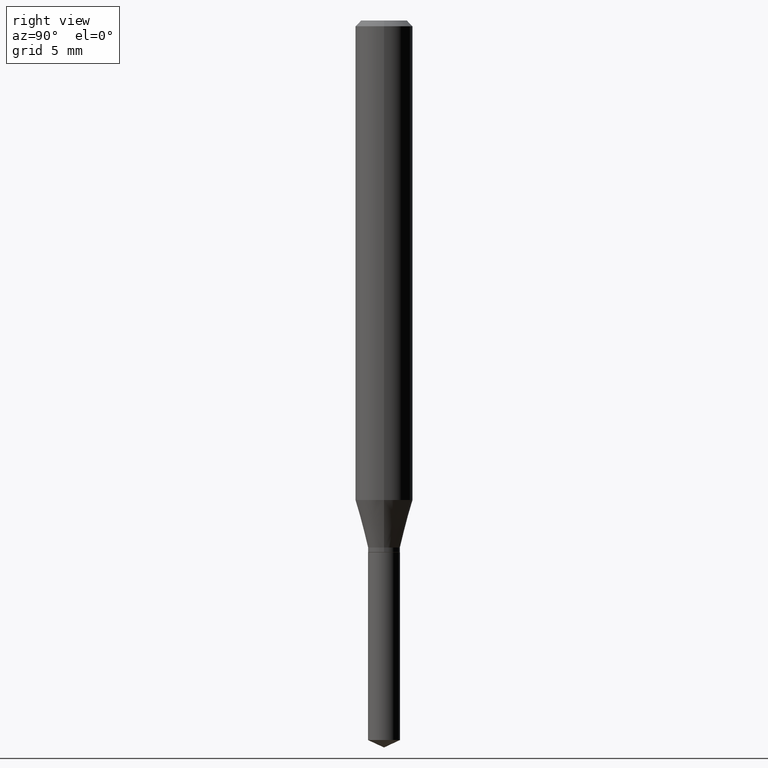
[diagram: clean part render]
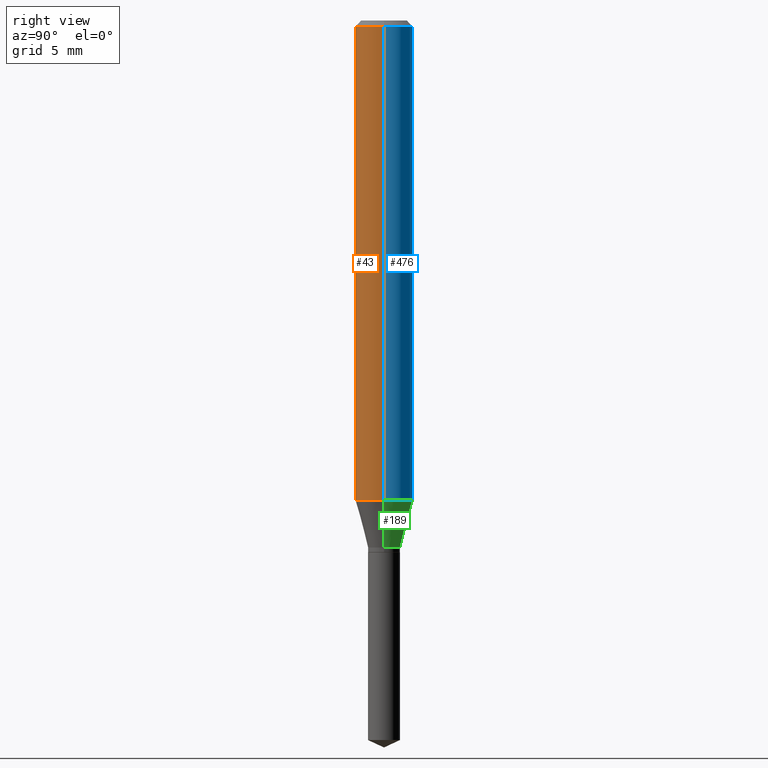
[diagram: same view with three faces highlighted in distinct colors, each labeled with its STEP entity id]
A machine part, right view with three faces highlighted in distinct colors.
Their STEP definitions:

[orange] entity #43 — the highlighted cylindrical surface (edge-blend (fillet) strip) has radius 1.4999 mm, axis along (-0, 0, 1).
#8 = DIRECTION ( 'NONE',  ( -2.445468806185136877E-29, 3.491481338843145188E-15, 1.000000000000000000 ) ) ;
#18 = CARTESIAN_POINT ( 'NONE',  ( 0.05905000000000011628, -3.857808499570329297E-15, -0.9868202688416950474 ) ) ;
#26 = VERTEX_POINT ( 'NONE', #65 ) ;
#27 = DIRECTION ( 'NONE',  ( -2.445468806185136597E-29, 3.491481338843145583E-15, 1.000000000000000000 ) ) ;
#32 = DIRECTION ( 'NONE',  ( 1.000000000000000000, -6.982962677686266711E-15, 0.000000000000000000 ) ) ;
#43 = ADVANCED_FACE ( 'NONE', ( #359 ), #105, .T. ) ;
#65 = CARTESIAN_POINT ( 'NONE',  ( -0.05904999999999999832, -1.323773988566005771E-15, -0.01181000000000007218 ) ) ;
#73 = LINE ( 'NONE', #220, #377 ) ;
#83 = AXIS2_PLACEMENT_3D ( 'NONE', #187, #369, #111 ) ;
#101 = CARTESIAN_POINT ( 'NONE',  ( 0.05905000000000006077, -4.123439461173744764E-16, 2.879382386107503023E-30 ) ) ;
#103 = CARTESIAN_POINT ( 'NONE',  ( -0.05905000000000011628, -3.025889067986614883E-15, -0.9868202688416950474 ) ) ;
#105 = CYLINDRICAL_SURFACE ( 'NONE', #83, 0.05905000000000006077 ) ;
#111 = DIRECTION ( 'NONE',  ( 1.000000000000000000, -6.982962677686266711E-15, 4.876176775795935793E-29 ) ) ;
#114 = VERTEX_POINT ( 'NONE', #18 ) ;
#118 = VECTOR ( 'NONE', #434, 39.37007874015748143 ) ;
#120 = ORIENTED_EDGE ( 'NONE', *, *, #240, .T. ) ;
#160 = DIRECTION ( 'NONE',  ( 1.000000000000000000, -6.982962677686266711E-15, 0.000000000000000000 ) ) ;
#173 = CIRCLE ( 'NONE', #478, 0.05905000000000011628 ) ;
#187 = CARTESIAN_POINT ( 'NONE',  ( 0.000000000000000000, 0.000000000000000000, 0.000000000000000000 ) ) ;
#198 = ORIENTED_EDGE ( 'NONE', *, *, #436, .T. ) ;
#220 = CARTESIAN_POINT ( 'NONE',  ( -0.05905000000000006077, 4.195754854663395916E-16, -2.904631170795524694E-30 ) ) ;
#235 = DIRECTION ( 'NONE',  ( -2.445468806185136597E-29, 3.491481338843145583E-15, 1.000000000000000000 ) ) ;
#240 = EDGE_CURVE ( 'NONE', #114, #255, #258, .T. ) ;
#255 = VERTEX_POINT ( 'NONE', #290 ) ;
#258 = LINE ( 'NONE', #101, #118 ) ;
#290 = CARTESIAN_POINT ( 'NONE',  ( 0.05904999999999999832, -4.535783407291118600E-16, -0.01181000000000007218 ) ) ;
#308 = VERTEX_POINT ( 'NONE', #103 ) ;
#323 = CARTESIAN_POINT ( 'NONE',  ( 2.413238184763595651E-29, -3.445464553452954771E-15, -0.9868202688416950474 ) ) ;
#325 = EDGE_CURVE ( 'NONE', #308, #26, #73, .T. ) ;
#341 = ORIENTED_EDGE ( 'NONE', *, *, #325, .F. ) ;
#359 = FACE_OUTER_BOUND ( 'NONE', #489, .T. ) ;
#360 = AXIS2_PLACEMENT_3D ( 'NONE', #361, #235, #160 ) ;
#361 = CARTESIAN_POINT ( 'NONE',  ( 2.888098660104664204E-31, -4.123439461173780263E-17, -0.01181000000000007218 ) ) ;
#369 = DIRECTION ( 'NONE',  ( -2.445468806185136597E-29, 3.491481338843145583E-15, 1.000000000000000000 ) ) ;
#377 = VECTOR ( 'NONE', #8, 39.37007874015748143 ) ;
#379 = CIRCLE ( 'NONE', #360, 0.05904999999999999832 ) ;
#403 = ORIENTED_EDGE ( 'NONE', *, *, #459, .F. ) ;
#434 = DIRECTION ( 'NONE',  ( -2.445468806185136877E-29, 3.491481338843145188E-15, 1.000000000000000000 ) ) ;
#436 = EDGE_CURVE ( 'NONE', #308, #114, #173, .T. ) ;
#459 = EDGE_CURVE ( 'NONE', #26, #255, #379, .T. ) ;
#478 = AXIS2_PLACEMENT_3D ( 'NONE', #323, #27, #32 ) ;
#489 = EDGE_LOOP ( 'NONE', ( #341, #198, #120, #403 ) ) ;

[blue] entity #476 — the highlighted cylindrical surface (edge-blend (fillet) strip) has radius 1.4999 mm, axis along (-0, 0, 1).
#1 = CARTESIAN_POINT ( 'NONE',  ( 2.888098660104664204E-31, -4.123439461173780263E-17, -0.01181000000000007218 ) ) ;
#6 = DIRECTION ( 'NONE',  ( 1.000000000000000000, -6.982962677686266711E-15, 0.000000000000000000 ) ) ;
#8 = DIRECTION ( 'NONE',  ( -2.445468806185136877E-29, 3.491481338843145188E-15, 1.000000000000000000 ) ) ;
#18 = CARTESIAN_POINT ( 'NONE',  ( 0.05905000000000011628, -3.857808499570329297E-15, -0.9868202688416950474 ) ) ;
#26 = VERTEX_POINT ( 'NONE', #65 ) ;
#37 = AXIS2_PLACEMENT_3D ( 'NONE', #245, #136, #433 ) ;
#54 = ORIENTED_EDGE ( 'NONE', *, *, #240, .F. ) ;
#65 = CARTESIAN_POINT ( 'NONE',  ( -0.05904999999999999832, -1.323773988566005771E-15, -0.01181000000000007218 ) ) ;
#73 = LINE ( 'NONE', #220, #377 ) ;
#101 = CARTESIAN_POINT ( 'NONE',  ( 0.05905000000000006077, -4.123439461173744764E-16, 2.879382386107503023E-30 ) ) ;
#103 = CARTESIAN_POINT ( 'NONE',  ( -0.05905000000000011628, -3.025889067986614883E-15, -0.9868202688416950474 ) ) ;
#114 = VERTEX_POINT ( 'NONE', #18 ) ;
#118 = VECTOR ( 'NONE', #434, 39.37007874015748143 ) ;
#136 = DIRECTION ( 'NONE',  ( -2.445468806185136597E-29, 3.491481338843145583E-15, 1.000000000000000000 ) ) ;
#147 = ORIENTED_EDGE ( 'NONE', *, *, #346, .F. ) ;
#155 = ORIENTED_EDGE ( 'NONE', *, *, #266, .T. ) ;
#168 = CYLINDRICAL_SURFACE ( 'NONE', #37, 0.05905000000000006077 ) ;
#172 = CIRCLE ( 'NONE', #299, 0.05905000000000011628 ) ;
#177 = DIRECTION ( 'NONE',  ( 1.000000000000000000, -6.982962677686266711E-15, 0.000000000000000000 ) ) ;
#220 = CARTESIAN_POINT ( 'NONE',  ( -0.05905000000000006077, 4.195754854663395916E-16, -2.904631170795524694E-30 ) ) ;
#240 = EDGE_CURVE ( 'NONE', #114, #255, #258, .T. ) ;
#245 = CARTESIAN_POINT ( 'NONE',  ( 0.000000000000000000, 0.000000000000000000, 0.000000000000000000 ) ) ;
#247 = FACE_OUTER_BOUND ( 'NONE', #411, .T. ) ;
#251 = AXIS2_PLACEMENT_3D ( 'NONE', #1, #339, #6 ) ;
#255 = VERTEX_POINT ( 'NONE', #290 ) ;
#258 = LINE ( 'NONE', #101, #118 ) ;
#264 = ORIENTED_EDGE ( 'NONE', *, *, #325, .T. ) ;
#266 = EDGE_CURVE ( 'NONE', #114, #308, #172, .T. ) ;
#290 = CARTESIAN_POINT ( 'NONE',  ( 0.05904999999999999832, -4.535783407291118600E-16, -0.01181000000000007218 ) ) ;
#299 = AXIS2_PLACEMENT_3D ( 'NONE', #483, #408, #177 ) ;
#308 = VERTEX_POINT ( 'NONE', #103 ) ;
#325 = EDGE_CURVE ( 'NONE', #308, #26, #73, .T. ) ;
#331 = CIRCLE ( 'NONE', #251, 0.05904999999999999832 ) ;
#339 = DIRECTION ( 'NONE',  ( -2.445468806185136597E-29, 3.491481338843145583E-15, 1.000000000000000000 ) ) ;
#346 = EDGE_CURVE ( 'NONE', #255, #26, #331, .T. ) ;
#377 = VECTOR ( 'NONE', #8, 39.37007874015748143 ) ;
#408 = DIRECTION ( 'NONE',  ( -2.445468806185136597E-29, 3.491481338843145583E-15, 1.000000000000000000 ) ) ;
#411 = EDGE_LOOP ( 'NONE', ( #155, #264, #147, #54 ) ) ;
#433 = DIRECTION ( 'NONE',  ( 1.000000000000000000, -6.982962677686266711E-15, 4.876176775795935793E-29 ) ) ;
#434 = DIRECTION ( 'NONE',  ( -2.445468806185136877E-29, 3.491481338843145188E-15, 1.000000000000000000 ) ) ;
#476 = ADVANCED_FACE ( 'NONE', ( #247 ), #168, .T. ) ;
#483 = CARTESIAN_POINT ( 'NONE',  ( 2.413238184763595651E-29, -3.445464553452954771E-15, -0.9868202688416950474 ) ) ;

[green] entity #189 — the highlighted conical surface has half-angle 15 deg.
#15 = CARTESIAN_POINT ( 'NONE',  ( 2.652355467188399034E-29, -3.786860660109275425E-15, -1.084600000000000009 ) ) ;
#18 = CARTESIAN_POINT ( 'NONE',  ( 0.05905000000000011628, -3.857808499570329297E-15, -0.9868202688416950474 ) ) ;
#25 = CARTESIAN_POINT ( 'NONE',  ( -0.03284999999999999726, -3.553447371412082977E-15, -1.084600000000000009 ) ) ;
#45 = EDGE_CURVE ( 'NONE', #268, #114, #254, .T. ) ;
#46 = CIRCLE ( 'NONE', #197, 0.03284999999999999726 ) ;
#63 = DIRECTION ( 'NONE',  ( -0.2588190451025211836, 5.211531920934547886E-15, 0.9659258262890679791 ) ) ;
#72 = CARTESIAN_POINT ( 'NONE',  ( 0.03284999999999999726, -4.016250984071269671E-15, -1.084600000000000009 ) ) ;
#88 = ORIENTED_EDGE ( 'NONE', *, *, #382, .T. ) ;
#90 = VECTOR ( 'NONE', #178, 39.37007874015748854 ) ;
#92 = ORIENTED_EDGE ( 'NONE', *, *, #45, .F. ) ;
#96 = LINE ( 'NONE', #25, #237 ) ;
#103 = CARTESIAN_POINT ( 'NONE',  ( -0.05905000000000011628, -3.025889067986614883E-15, -0.9868202688416950474 ) ) ;
#114 = VERTEX_POINT ( 'NONE', #18 ) ;
#140 = EDGE_CURVE ( 'NONE', #340, #308, #96, .T. ) ;
#152 = CARTESIAN_POINT ( 'NONE',  ( -0.03284999999999999726, -3.569857333704645111E-15, -1.084600000000000009 ) ) ;
#161 = DIRECTION ( 'NONE',  ( -2.445468806185136597E-29, 3.491481338843145583E-15, 1.000000000000000000 ) ) ;
#172 = CIRCLE ( 'NONE', #299, 0.05905000000000011628 ) ;
#177 = DIRECTION ( 'NONE',  ( 1.000000000000000000, -6.982962677686266711E-15, 0.000000000000000000 ) ) ;
#178 = DIRECTION ( 'NONE',  ( 0.2588190451025211836, 1.565188264969622559E-15, 0.9659258262890679791 ) ) ;
#182 = CONICAL_SURFACE ( 'NONE', #430, 0.03284999999999999726, 0.2617993877991499074 ) ;
#188 = ORIENTED_EDGE ( 'NONE', *, *, #266, .F. ) ;
#189 = ADVANCED_FACE ( 'NONE', ( #241 ), #182, .T. ) ;
#197 = AXIS2_PLACEMENT_3D ( 'NONE', #15, #211, #233 ) ;
#211 = DIRECTION ( 'NONE',  ( -2.445468806185136597E-29, 3.491481338843145583E-15, 1.000000000000000000 ) ) ;
#233 = DIRECTION ( 'NONE',  ( 1.000000000000000000, -6.982962677686273021E-15, 0.000000000000000000 ) ) ;
#237 = VECTOR ( 'NONE', #63, 39.37007874015748854 ) ;
#241 = FACE_OUTER_BOUND ( 'NONE', #457, .T. ) ;
#254 = LINE ( 'NONE', #72, #90 ) ;
#266 = EDGE_CURVE ( 'NONE', #114, #308, #172, .T. ) ;
#268 = VERTEX_POINT ( 'NONE', #366 ) ;
#299 = AXIS2_PLACEMENT_3D ( 'NONE', #483, #408, #177 ) ;
#308 = VERTEX_POINT ( 'NONE', #103 ) ;
#313 = DIRECTION ( 'NONE',  ( 1.000000000000000000, -6.982962677686273021E-15, 0.000000000000000000 ) ) ;
#340 = VERTEX_POINT ( 'NONE', #152 ) ;
#348 = CARTESIAN_POINT ( 'NONE',  ( 2.652355467188399034E-29, -3.786860660109275425E-15, -1.084600000000000009 ) ) ;
#366 = CARTESIAN_POINT ( 'NONE',  ( 0.03284999999999999726, -4.016250984071269671E-15, -1.084600000000000009 ) ) ;
#382 = EDGE_CURVE ( 'NONE', #268, #340, #46, .T. ) ;
#408 = DIRECTION ( 'NONE',  ( -2.445468806185136597E-29, 3.491481338843145583E-15, 1.000000000000000000 ) ) ;
#430 = AXIS2_PLACEMENT_3D ( 'NONE', #348, #161, #313 ) ;
#457 = EDGE_LOOP ( 'NONE', ( #88, #458, #188, #92 ) ) ;
#458 = ORIENTED_EDGE ( 'NONE', *, *, #140, .T. ) ;
#483 = CARTESIAN_POINT ( 'NONE',  ( 2.413238184763595651E-29, -3.445464553452954771E-15, -0.9868202688416950474 ) ) ;